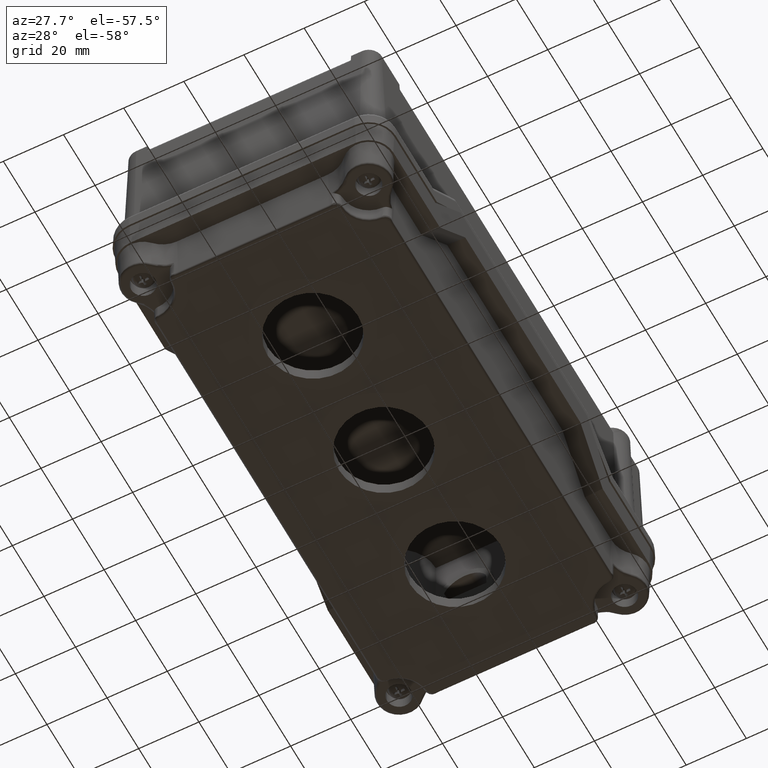
[diagram: clean part render]
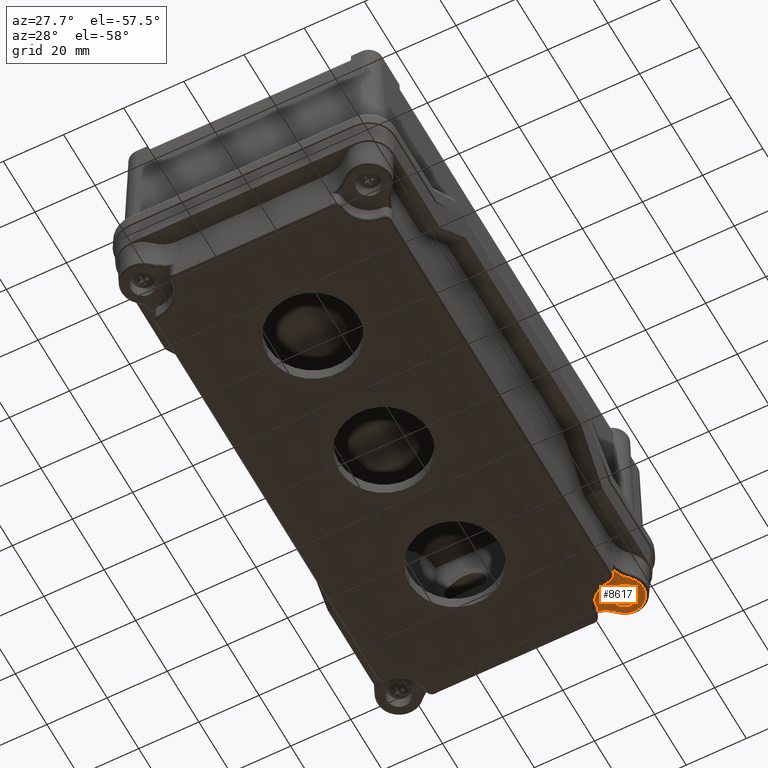
[diagram: same view with one face highlighted and labeled with its STEP entity id]
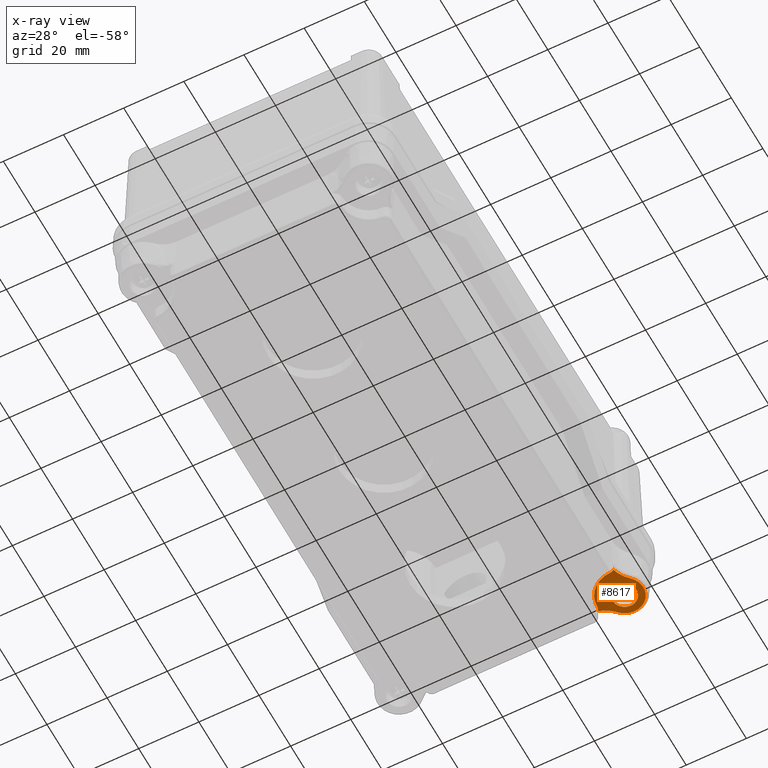
[diagram: x-ray of the same camera — body ghosted, the highlighted face saturated]
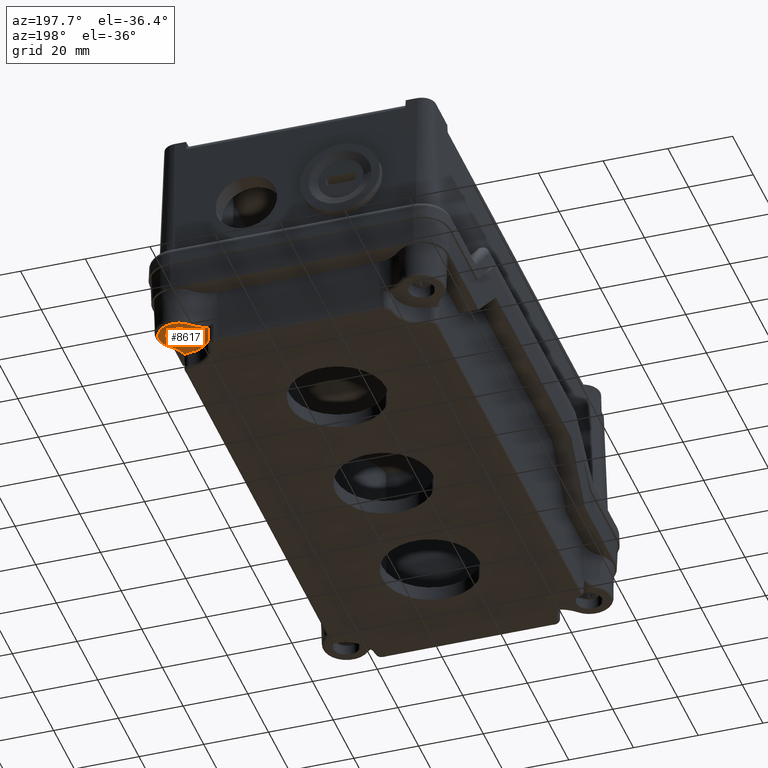
[diagram: same view with one face highlighted and labeled with its STEP entity id]
A machine part, auxiliary view. The second image highlights one B-rep face of the part: STEP entity #8617.
The next image is the same camera in x-ray: the body ghosted, the highlighted face saturated — about 0% of this face is hidden behind the body in this view.
A second angle (auxiliary view) of the same face is appended — the face is thin or edge-on in the first view.
In plain terms, the highlighted planar face has unit normal (-0, -0, 1).
Its self-contained STEP definition (entity closure, byte-faithful):
#5393=CARTESIAN_POINT('',(4.839781632405757,98.945456480957148,35.0));
#5394=VERTEX_POINT('',#5393);
#5402=CARTESIAN_POINT('',(9.805987881366306,95.916881611067765,35.0));
#5403=VERTEX_POINT('',#5402);
#5404=CARTESIAN_POINT('',(12.723991961410796,106.287813954751130,35.0));
#5405=DIRECTION('',(0.0,0.0,1.0));
#5406=DIRECTION('',(-0.454386696080470,-0.890804541089163,0.0));
#5407=AXIS2_PLACEMENT_3D('',#5404,#5405,#5406);
#5408=CIRCLE('',#5407,10.773624542602549);
#5409=EDGE_CURVE('',#5394,#5403,#5408,.T.);
#5443=CARTESIAN_POINT('',(-3.960072835591573,90.145602012959841,35.0));
#5444=VERTEX_POINT('',#5443);
#5452=CARTESIAN_POINT('',(0.283278526198740,94.702105119166902,35.0));
#5453=DIRECTION('',(0.0,0.0,-1.0));
#5454=DIRECTION('',(-0.707106781186546,0.707106781186549,0.0));
#5455=AXIS2_PLACEMENT_3D('',#5452,#5453,#5454);
#5456=CIRCLE('',#5455,6.226375457397539);
#5457=EDGE_CURVE('',#5444,#5394,#5456,.T.);
#5477=CARTESIAN_POINT('',(-0.931497956200960,85.179395781045827,35.0));
#5478=VERTEX_POINT('',#5477);
#5494=CARTESIAN_POINT('',(-11.302430309385489,82.261391683954855,35.0));
#5495=DIRECTION('',(0.0,0.0,1.000000000000000));
#5496=DIRECTION('',(0.890804541089163,0.454386696080470,0.0));
#5497=AXIS2_PLACEMENT_3D('',#5494,#5495,#5496);
#5498=CIRCLE('',#5497,10.773624542602601);
#5499=EDGE_CURVE('',#5478,#5444,#5498,.T.);
#8241=CARTESIAN_POINT('',(4.283278526198733,94.702105119166930,35.0));
#8242=VERTEX_POINT('',#8241);
#8243=CARTESIAN_POINT('',(0.283278526198733,94.702105119166930,35.0));
#8244=DIRECTION('',(0.0,0.0,-1.0));
#8245=DIRECTION('',(1.0,0.0,0.0));
#8246=AXIS2_PLACEMENT_3D('',#8243,#8244,#8245);
#8247=CIRCLE('',#8246,4.0);
#8248=EDGE_CURVE('',#8242,#8242,#8247,.T.);
#8494=CARTESIAN_POINT('',(9.282599393403551,94.591543240148482,35.000000000001130));
#8495=VERTEX_POINT('',#8494);
#8496=CARTESIAN_POINT('',(9.282599393403551,94.591543240148539,35.0));
#8497=CARTESIAN_POINT('',(9.285802709125241,94.852281084642485,35.0));
#8498=CARTESIAN_POINT('',(9.339904633758463,95.109908406314958,35.0));
#8499=CARTESIAN_POINT('',(9.530422994133897,95.558335852034418,35.0));
#8500=CARTESIAN_POINT('',(9.653610377561906,95.750013601082529,35.0));
#8501=CARTESIAN_POINT('',(9.805987876801947,95.916881615235766,35.0));
#8502=B_SPLINE_CURVE_WITH_KNOTS('',3,(#8496,#8497,#8498,#8499,#8500,#8501),.UNSPECIFIED.,.F.,.U.,(4,2,4),(0.0,0.078227256314322,0.146166880603634),.UNSPECIFIED.);
#8503=EDGE_CURVE('',#5403,#8495,#8502,.F.);
#8522=CARTESIAN_POINT('',(0.393840405217501,85.702784251962100,35.000000000006473));
#8523=VERTEX_POINT('',#8522);
#8524=CARTESIAN_POINT('',(0.283278526198740,94.702105119166902,35.0));
#8525=DIRECTION('',(0.0,0.0,1.0));
#8526=DIRECTION('',(-1.0,0.0,0.0));
#8527=AXIS2_PLACEMENT_3D('',#8524,#8525,#8526);
#8528=CIRCLE('',#8527,9.0);
#8529=EDGE_CURVE('',#8523,#8495,#8528,.T.);
#8584=CARTESIAN_POINT('',(-0.931497956200958,85.179395781045827,35.0));
#8585=CARTESIAN_POINT('',(-0.825783321727045,85.275930347101891,35.0));
#8586=CARTESIAN_POINT('',(-0.709763623190567,85.361068087230962,35.000000000000007));
#8587=CARTESIAN_POINT('',(-0.437038137000738,85.519086291130790,35.0));
#8588=CARTESIAN_POINT('',(-0.278336669591097,85.585602901393599,35.0));
#8589=CARTESIAN_POINT('',(0.052104625360185,85.676586080086352,35.0));
#8590=CARTESIAN_POINT('',(0.222485315022816,85.700679055244393,35.0));
#8591=CARTESIAN_POINT('',(0.393840405217129,85.702784251962100,35.0));
#8592=B_SPLINE_CURVE_WITH_KNOTS('',3,(#8584,#8585,#8586,#8587,#8588,#8589,#8590,#8591),.UNSPECIFIED.,.F.,.U.,(4,2,2,4),(0.191171921783953,0.234319142558541,0.285729103545769,0.337138379963028),.UNSPECIFIED.);
#8593=EDGE_CURVE('',#8523,#5478,#8592,.F.);
#8601=CARTESIAN_POINT('',(0.283278526198740,94.702105119166902,35.0));
#8602=DIRECTION('',(0.0,0.0,-1.0));
#8603=DIRECTION('',(-1.0,0.0,0.0));
#8604=AXIS2_PLACEMENT_3D('',#8601,#8602,#8603);
#8605=PLANE('',#8604);
#8606=ORIENTED_EDGE('',*,*,#5499,.F.);
#8607=ORIENTED_EDGE('',*,*,#8593,.F.);
#8608=ORIENTED_EDGE('',*,*,#8529,.T.);
#8609=ORIENTED_EDGE('',*,*,#8503,.F.);
#8610=ORIENTED_EDGE('',*,*,#5409,.F.);
#8611=ORIENTED_EDGE('',*,*,#5457,.F.);
#8612=EDGE_LOOP('',(#8606,#8607,#8608,#8609,#8610,#8611));
#8613=FACE_OUTER_BOUND('',#8612,.T.);
#8614=ORIENTED_EDGE('',*,*,#8248,.T.);
#8615=EDGE_LOOP('',(#8614));
#8616=FACE_BOUND('',#8615,.T.);
#8617=ADVANCED_FACE('',(#8613,#8616),#8605,.F.);